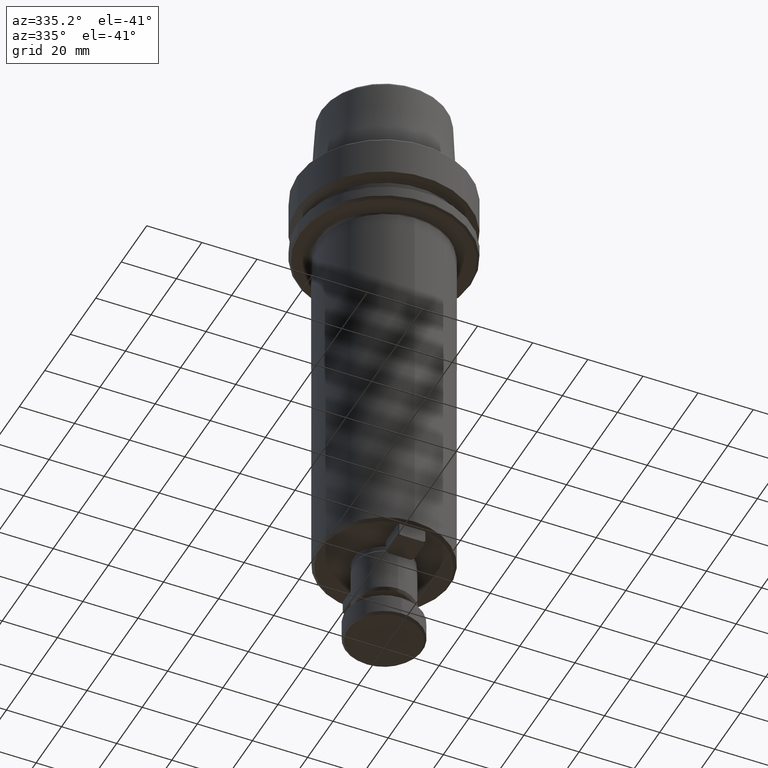
[diagram: clean part render]
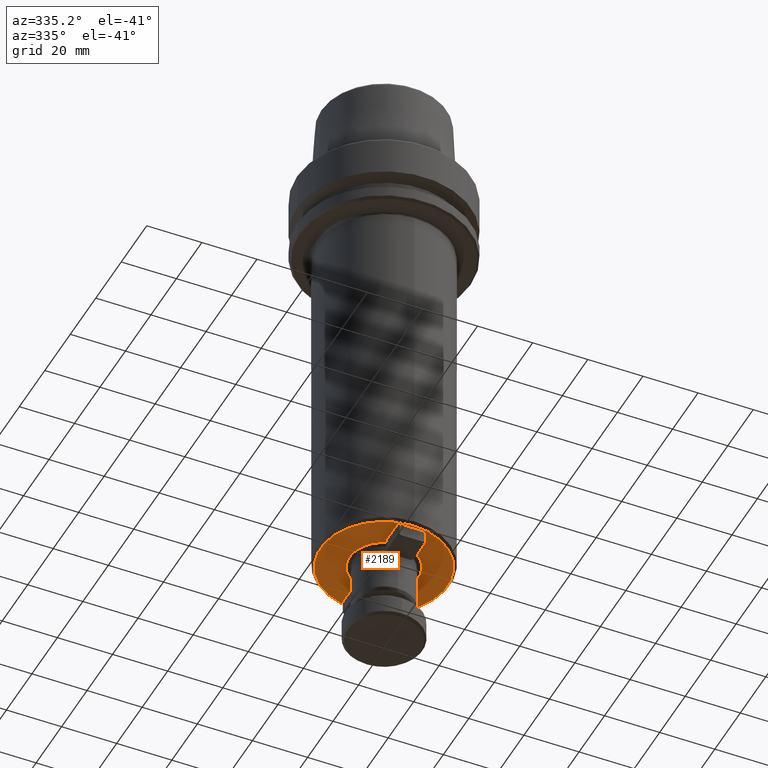
[diagram: same view with one face highlighted and labeled with its STEP entity id]
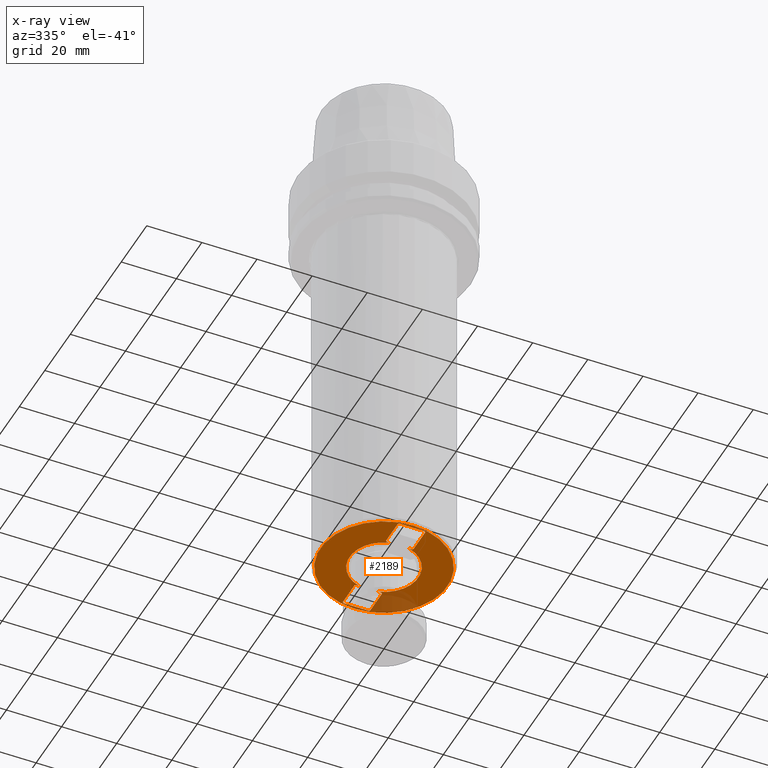
[diagram: x-ray of the same camera — body ghosted, the highlighted face saturated]
A machine part, auxiliary view. The second image highlights one B-rep face of the part: STEP entity #2189.
The next image is the same camera in x-ray: the body ghosted, the highlighted face saturated — about 13% of this face is hidden behind the body in this view.
In plain terms, the highlighted planar face has unit normal (-0, 0, -1).
Its self-contained STEP definition (entity closure, byte-faithful):
#1 = EDGE_CURVE ( 'NONE', #102, #883, #2614, .T. ) ;
#5 = VECTOR ( 'NONE', #1206, 1000.000000000000000 ) ;
#10 = ORIENTED_EDGE ( 'NONE', *, *, #1370, .F. ) ;
#20 = EDGE_CURVE ( 'NONE', #1324, #800, #2583, .T. ) ;
#38 = VERTEX_POINT ( 'NONE', #2049 ) ;
#71 = CARTESIAN_POINT ( 'NONE',  ( -4.599999999999997900, -22.00000000000000700, -160.0000000000000000 ) ) ;
#100 = ORIENTED_EDGE ( 'NONE', *, *, #2509, .F. ) ;
#102 = VERTEX_POINT ( 'NONE', #2675 ) ;
#119 = CARTESIAN_POINT ( 'NONE',  ( 0.0000000000000000000, 6.435398866107657600E-015, -160.0000000000000000 ) ) ;
#127 = CARTESIAN_POINT ( 'NONE',  ( 4.599999999999998800, -22.00000000000000700, -160.0000000000000000 ) ) ;
#134 = DIRECTION ( 'NONE',  ( -1.000000000000000000, 0.0000000000000000000, 0.0000000000000000000 ) ) ;
#143 = VECTOR ( 'NONE', #2686, 1000.000000000000000 ) ;
#147 = DIRECTION ( 'NONE',  ( 0.0000000000000000000, 1.000000000000000000, 0.0000000000000000000 ) ) ;
#170 = CARTESIAN_POINT ( 'NONE',  ( 5.000000000000000900, 12.40000000000000600, -160.0000000000000000 ) ) ;
#182 = DIRECTION ( 'NONE',  ( 1.000000000000000000, -0.0000000000000000000, -0.0000000000000000000 ) ) ;
#185 = DIRECTION ( 'NONE',  ( -1.000000000000000000, 0.0000000000000000000, 0.0000000000000000000 ) ) ;
#224 = LINE ( 'NONE', #579, #2491 ) ;
#240 = FACE_OUTER_BOUND ( 'NONE', #2175, .T. ) ;
#264 = ORIENTED_EDGE ( 'NONE', *, *, #1689, .F. ) ;
#277 = EDGE_CURVE ( 'NONE', #1209, #1511, #224, .T. ) ;
#281 = CARTESIAN_POINT ( 'NONE',  ( 5.000000000000000900, -12.40000000000000600, -160.0000000000000000 ) ) ;
#295 = ORIENTED_EDGE ( 'NONE', *, *, #1141, .T. ) ;
#321 = DIRECTION ( 'NONE',  ( 0.0000000000000000000, 1.000000000000000000, 0.0000000000000000000 ) ) ;
#352 = EDGE_CURVE ( 'NONE', #1511, #2155, #1556, .T. ) ;
#379 = ORIENTED_EDGE ( 'NONE', *, *, #1300, .F. ) ;
#441 = LINE ( 'NONE', #281, #1543 ) ;
#452 = VECTOR ( 'NONE', #1777, 1000.000000000000100 ) ;
#453 = LINE ( 'NONE', #2746, #1557 ) ;
#470 = EDGE_CURVE ( 'NONE', #2533, #528, #2405, .T. ) ;
#471 = CIRCLE ( 'NONE', #2412, 23.00000000000000400 ) ;
#490 = EDGE_LOOP ( 'NONE', ( #668, #836, #1254, #1978, #917, #2731, #379, #2159, #2217, #1862, #10, #637, #900, #100, #717, #2737, #264, #871, #2145, #2611 ) ) ;
#493 = CARTESIAN_POINT ( 'NONE',  ( -5.000000000000000000, 21.60000000000000500, -160.0000000000000000 ) ) ;
#497 = LINE ( 'NONE', #1963, #2757 ) ;
#499 = DIRECTION ( 'NONE',  ( -0.7071067811865474600, -0.7071067811865474600, 0.0000000000000000000 ) ) ;
#513 = LINE ( 'NONE', #2088, #584 ) ;
#527 = CARTESIAN_POINT ( 'NONE',  ( 5.000000000000000900, -12.40000000000000600, -160.0000000000000000 ) ) ;
#528 = VERTEX_POINT ( 'NONE', #1575 ) ;
#529 = CARTESIAN_POINT ( 'NONE',  ( 4.599999999999997900, 22.00000000000000700, -160.0000000000000000 ) ) ;
#531 = DIRECTION ( 'NONE',  ( -1.885568995626964500E-016, 1.000000000000000000, 0.0000000000000000000 ) ) ;
#546 = DIRECTION ( 'NONE',  ( -0.0000000000000000000, 4.802536467244522200E-017, -1.000000000000000000 ) ) ;
#579 = CARTESIAN_POINT ( 'NONE',  ( 4.599999999999997900, 22.00000000000000700, -160.0000000000000000 ) ) ;
#584 = VECTOR ( 'NONE', #2301, 1000.000000000000000 ) ;
#590 = DIRECTION ( 'NONE',  ( 0.7071067811865474600, 0.7071067811865474600, -0.0000000000000000000 ) ) ;
#622 = EDGE_CURVE ( 'NONE', #2380, #763, #1435, .T. ) ;
#629 = VECTOR ( 'NONE', #531, 1000.000000000000000 ) ;
#637 = ORIENTED_EDGE ( 'NONE', *, *, #622, .F. ) ;
#649 = DIRECTION ( 'NONE',  ( 1.000000000000000000, 0.0000000000000000000, 0.0000000000000000000 ) ) ;
#667 = CARTESIAN_POINT ( 'NONE',  ( -4.600000000000000500, -12.00000000000000700, -160.0000000000000000 ) ) ;
#668 = ORIENTED_EDGE ( 'NONE', *, *, #2215, .F. ) ;
#717 = ORIENTED_EDGE ( 'NONE', *, *, #352, .F. ) ;
#740 = CARTESIAN_POINT ( 'NONE',  ( 4.999999999999999100, 21.60000000000000500, -160.0000000000000000 ) ) ;
#746 = VERTEX_POINT ( 'NONE', #1528 ) ;
#763 = VERTEX_POINT ( 'NONE', #2591 ) ;
#800 = VERTEX_POINT ( 'NONE', #919 ) ;
#808 = EDGE_CURVE ( 'NONE', #977, #2380, #1304, .T. ) ;
#825 = VECTOR ( 'NONE', #185, 1000.000000000000000 ) ;
#836 = ORIENTED_EDGE ( 'NONE', *, *, #2801, .F. ) ;
#867 = VECTOR ( 'NONE', #1776, 1000.000000000000000 ) ;
#871 = ORIENTED_EDGE ( 'NONE', *, *, #1, .F. ) ;
#883 = VERTEX_POINT ( 'NONE', #493 ) ;
#900 = ORIENTED_EDGE ( 'NONE', *, *, #808, .F. ) ;
#917 = ORIENTED_EDGE ( 'NONE', *, *, #1408, .F. ) ;
#919 = CARTESIAN_POINT ( 'NONE',  ( -4.599999999999997900, -22.00000000000000700, -160.0000000000000000 ) ) ;
#930 = VECTOR ( 'NONE', #1323, 1000.000000000000000 ) ;
#936 = CARTESIAN_POINT ( 'NONE',  ( 5.000000000000000900, 12.40000000000000600, -160.0000000000000000 ) ) ;
#948 = CARTESIAN_POINT ( 'NONE',  ( -4.599999999999997900, -22.00000000000000700, -160.0000000000000000 ) ) ;
#959 = DIRECTION ( 'NONE',  ( -0.0000000000000000000, 4.802536467244522200E-017, -1.000000000000000000 ) ) ;
#973 = CARTESIAN_POINT ( 'NONE',  ( -5.000000000000000000, 21.60000000000000500, -160.0000000000000000 ) ) ;
#976 = CARTESIAN_POINT ( 'NONE',  ( 0.0000000000000000000, 6.435398866107657600E-015, -160.0000000000000000 ) ) ;
#977 = VERTEX_POINT ( 'NONE', #170 ) ;
#1013 = ORIENTED_EDGE ( 'NONE', *, *, #2501, .T. ) ;
#1033 = CARTESIAN_POINT ( 'NONE',  ( -4.600000000000000500, 12.00000000000000700, -160.0000000000000000 ) ) ;
#1084 = VECTOR ( 'NONE', #590, 1000.000000000000100 ) ;
#1100 = CARTESIAN_POINT ( 'NONE',  ( -4.599999999999998800, 22.00000000000000700, -160.0000000000000000 ) ) ;
#1107 = CARTESIAN_POINT ( 'NONE',  ( 5.000000000000000000, -21.60000000000000500, -160.0000000000000000 ) ) ;
#1141 = EDGE_CURVE ( 'NONE', #2547, #38, #471, .T. ) ;
#1177 = CARTESIAN_POINT ( 'NONE',  ( -3.427885645700500000, -12.00000000000000700, -160.0000000000000000 ) ) ;
#1205 = PLANE ( 'NONE',  #1411 ) ;
#1206 = DIRECTION ( 'NONE',  ( -1.000000000000000000, 0.0000000000000000000, 0.0000000000000000000 ) ) ;
#1209 = VERTEX_POINT ( 'NONE', #1100 ) ;
#1210 = DIRECTION ( 'NONE',  ( 0.0000000000000000000, 1.000000000000000000, 0.0000000000000000000 ) ) ;
#1233 = CARTESIAN_POINT ( 'NONE',  ( 5.000000000000000000, -21.60000000000000500, -160.0000000000000000 ) ) ;
#1254 = ORIENTED_EDGE ( 'NONE', *, *, #470, .F. ) ;
#1293 = LINE ( 'NONE', #2066, #629 ) ;
#1300 = EDGE_CURVE ( 'NONE', #2252, #1324, #2392, .T. ) ;
#1304 = LINE ( 'NONE', #936, #143 ) ;
#1323 = DIRECTION ( 'NONE',  ( -9.427844978134822700E-017, -1.000000000000000000, 0.0000000000000000000 ) ) ;
#1324 = VERTEX_POINT ( 'NONE', #127 ) ;
#1352 = DIRECTION ( 'NONE',  ( 0.7071067811865483500, 0.7071067811865468000, 0.0000000000000000000 ) ) ;
#1370 = EDGE_CURVE ( 'NONE', #763, #2276, #2251, .T. ) ;
#1385 = CARTESIAN_POINT ( 'NONE',  ( 4.600000000000000500, 12.00000000000000700, -160.0000000000000000 ) ) ;
#1404 = EDGE_CURVE ( 'NONE', #2408, #2160, #441, .T. ) ;
#1408 = EDGE_CURVE ( 'NONE', #800, #1799, #2115, .T. ) ;
#1411 = AXIS2_PLACEMENT_3D ( 'NONE', #1425, #546, #2086 ) ;
#1425 = CARTESIAN_POINT ( 'NONE',  ( 0.0000000000000000000, 23.00000000000001100, -160.0000000000000000 ) ) ;
#1435 = LINE ( 'NONE', #2154, #825 ) ;
#1448 = DIRECTION ( 'NONE',  ( -0.0000000000000000000, 4.802536467244522200E-017, -1.000000000000000000 ) ) ;
#1511 = VERTEX_POINT ( 'NONE', #529 ) ;
#1528 = CARTESIAN_POINT ( 'NONE',  ( -3.427885645700550200, 12.00000000000000400, -160.0000000000000000 ) ) ;
#1543 = VECTOR ( 'NONE', #1579, 1000.000000000000000 ) ;
#1556 = LINE ( 'NONE', #1785, #452 ) ;
#1557 = VECTOR ( 'NONE', #134, 1000.000000000000000 ) ;
#1559 = AXIS2_PLACEMENT_3D ( 'NONE', #2750, #1448, #147 ) ;
#1575 = CARTESIAN_POINT ( 'NONE',  ( -4.600000000000000500, -12.00000000000000700, -160.0000000000000000 ) ) ;
#1579 = DIRECTION ( 'NONE',  ( 0.7071067811865483500, -0.7071067811865468000, 0.0000000000000000000 ) ) ;
#1596 = LINE ( 'NONE', #1900, #1084 ) ;
#1597 = LINE ( 'NONE', #1107, #930 ) ;
#1620 = VECTOR ( 'NONE', #1649, 1000.000000000000000 ) ;
#1639 = DIRECTION ( 'NONE',  ( -0.0000000000000000000, 4.802536467244522200E-017, -1.000000000000000000 ) ) ;
#1649 = DIRECTION ( 'NONE',  ( 1.885568995626964500E-016, -1.000000000000000000, 0.0000000000000000000 ) ) ;
#1666 = CARTESIAN_POINT ( 'NONE',  ( 4.599999999999998800, -22.00000000000000700, -160.0000000000000000 ) ) ;
#1689 = EDGE_CURVE ( 'NONE', #883, #1209, #1596, .T. ) ;
#1699 = VERTEX_POINT ( 'NONE', #1033 ) ;
#1776 = DIRECTION ( 'NONE',  ( 1.000000000000000000, 0.0000000000000000000, 0.0000000000000000000 ) ) ;
#1777 = DIRECTION ( 'NONE',  ( 0.7071067811865474600, -0.7071067811865474600, 0.0000000000000000000 ) ) ;
#1785 = CARTESIAN_POINT ( 'NONE',  ( 4.599999999999997900, 22.00000000000000700, -160.0000000000000000 ) ) ;
#1792 = DIRECTION ( 'NONE',  ( -0.7071067811865474600, 0.7071067811865474600, 0.0000000000000000000 ) ) ;
#1797 = VECTOR ( 'NONE', #499, 1000.000000000000100 ) ;
#1799 = VERTEX_POINT ( 'NONE', #2427 ) ;
#1823 = DIRECTION ( 'NONE',  ( 0.0000000000000000000, 1.000000000000000000, 0.0000000000000000000 ) ) ;
#1862 = ORIENTED_EDGE ( 'NONE', *, *, #2741, .F. ) ;
#1863 = CARTESIAN_POINT ( 'NONE',  ( 2.877919977996280300E-015, 23.00000000000001100, -160.0000000000000000 ) ) ;
#1900 = CARTESIAN_POINT ( 'NONE',  ( -4.599999999999998800, 22.00000000000000700, -160.0000000000000000 ) ) ;
#1959 = VERTEX_POINT ( 'NONE', #1177 ) ;
#1963 = CARTESIAN_POINT ( 'NONE',  ( -4.600000000000000500, -12.00000000000000700, -160.0000000000000000 ) ) ;
#1965 = FACE_BOUND ( 'NONE', #490, .T. ) ;
#1978 = ORIENTED_EDGE ( 'NONE', *, *, #2000, .F. ) ;
#1991 = VECTOR ( 'NONE', #2662, 1000.000000000000000 ) ;
#2000 = EDGE_CURVE ( 'NONE', #1799, #2533, #1293, .T. ) ;
#2010 = CARTESIAN_POINT ( 'NONE',  ( -5.000000000000000900, -12.40000000000000600, -160.0000000000000000 ) ) ;
#2039 = LINE ( 'NONE', #667, #867 ) ;
#2049 = CARTESIAN_POINT ( 'NONE',  ( 0.0000000000000000000, -22.99999999999999600, -160.0000000000000000 ) ) ;
#2061 = CARTESIAN_POINT ( 'NONE',  ( 4.600000000000000500, -12.00000000000000700, -160.0000000000000000 ) ) ;
#2066 = CARTESIAN_POINT ( 'NONE',  ( -4.999999999999999100, -21.60000000000000500, -160.0000000000000000 ) ) ;
#2086 = DIRECTION ( 'NONE',  ( 0.0000000000000000000, 1.000000000000000000, 4.802536467244522200E-017 ) ) ;
#2088 = CARTESIAN_POINT ( 'NONE',  ( -5.000000000000000900, 12.40000000000000600, -160.0000000000000000 ) ) ;
#2096 = CARTESIAN_POINT ( 'NONE',  ( -5.000000000000000900, -12.40000000000000600, -160.0000000000000000 ) ) ;
#2115 = LINE ( 'NONE', #71, #2631 ) ;
#2134 = VECTOR ( 'NONE', #1352, 1000.000000000000000 ) ;
#2145 = ORIENTED_EDGE ( 'NONE', *, *, #2513, .F. ) ;
#2154 = CARTESIAN_POINT ( 'NONE',  ( 4.600000000000000500, 12.00000000000000700, -160.0000000000000000 ) ) ;
#2155 = VERTEX_POINT ( 'NONE', #740 ) ;
#2159 = ORIENTED_EDGE ( 'NONE', *, *, #2782, .F. ) ;
#2160 = VERTEX_POINT ( 'NONE', #527 ) ;
#2175 = EDGE_LOOP ( 'NONE', ( #1013, #295 ) ) ;
#2189 = ADVANCED_FACE ( 'NONE', ( #240, #1965 ), #1205, .T. ) ;
#2203 = LINE ( 'NONE', #2295, #1620 ) ;
#2215 = EDGE_CURVE ( 'NONE', #1959, #746, #2415, .T. ) ;
#2217 = ORIENTED_EDGE ( 'NONE', *, *, #1404, .F. ) ;
#2251 = CIRCLE ( 'NONE', #2499, 12.47999999999999500 ) ;
#2252 = VERTEX_POINT ( 'NONE', #1233 ) ;
#2266 = CIRCLE ( 'NONE', #2530, 23.00000000000000400 ) ;
#2276 = VERTEX_POINT ( 'NONE', #2549 ) ;
#2293 = CARTESIAN_POINT ( 'NONE',  ( 0.0000000000000000000, 6.435398866107657600E-015, -160.0000000000000000 ) ) ;
#2295 = CARTESIAN_POINT ( 'NONE',  ( 4.999999999999999100, 21.60000000000000500, -160.0000000000000000 ) ) ;
#2301 = DIRECTION ( 'NONE',  ( -0.7071067811865483500, 0.7071067811865468000, -0.0000000000000000000 ) ) ;
#2380 = VERTEX_POINT ( 'NONE', #1385 ) ;
#2392 = LINE ( 'NONE', #1666, #1797 ) ;
#2405 = LINE ( 'NONE', #2010, #2134 ) ;
#2408 = VERTEX_POINT ( 'NONE', #2061 ) ;
#2412 = AXIS2_PLACEMENT_3D ( 'NONE', #2293, #959, #321 ) ;
#2415 = CIRCLE ( 'NONE', #1559, 12.47999999999999500 ) ;
#2427 = CARTESIAN_POINT ( 'NONE',  ( -4.999999999999999100, -21.60000000000000500, -160.0000000000000000 ) ) ;
#2491 = VECTOR ( 'NONE', #182, 1000.000000000000000 ) ;
#2499 = AXIS2_PLACEMENT_3D ( 'NONE', #119, #1639, #1823 ) ;
#2501 = EDGE_CURVE ( 'NONE', #38, #2547, #2266, .T. ) ;
#2509 = EDGE_CURVE ( 'NONE', #2155, #977, #2203, .T. ) ;
#2513 = EDGE_CURVE ( 'NONE', #1699, #102, #513, .T. ) ;
#2514 = DIRECTION ( 'NONE',  ( -0.0000000000000000000, 4.802536467244522200E-017, -1.000000000000000000 ) ) ;
#2522 = EDGE_CURVE ( 'NONE', #746, #1699, #453, .T. ) ;
#2530 = AXIS2_PLACEMENT_3D ( 'NONE', #976, #2514, #1210 ) ;
#2533 = VERTEX_POINT ( 'NONE', #2096 ) ;
#2547 = VERTEX_POINT ( 'NONE', #1863 ) ;
#2549 = CARTESIAN_POINT ( 'NONE',  ( 3.427885645700505800, -12.00000000000000400, -160.0000000000000000 ) ) ;
#2583 = LINE ( 'NONE', #948, #5 ) ;
#2591 = CARTESIAN_POINT ( 'NONE',  ( 3.427885645700550200, 12.00000000000000400, -160.0000000000000000 ) ) ;
#2611 = ORIENTED_EDGE ( 'NONE', *, *, #2522, .F. ) ;
#2614 = LINE ( 'NONE', #973, #1991 ) ;
#2631 = VECTOR ( 'NONE', #1792, 1000.000000000000100 ) ;
#2662 = DIRECTION ( 'NONE',  ( 9.427844978134822700E-017, 1.000000000000000000, -0.0000000000000000000 ) ) ;
#2675 = CARTESIAN_POINT ( 'NONE',  ( -5.000000000000000900, 12.40000000000000600, -160.0000000000000000 ) ) ;
#2686 = DIRECTION ( 'NONE',  ( -0.7071067811865483500, -0.7071067811865468000, 0.0000000000000000000 ) ) ;
#2731 = ORIENTED_EDGE ( 'NONE', *, *, #20, .F. ) ;
#2737 = ORIENTED_EDGE ( 'NONE', *, *, #277, .F. ) ;
#2741 = EDGE_CURVE ( 'NONE', #2276, #2408, #497, .T. ) ;
#2746 = CARTESIAN_POINT ( 'NONE',  ( 4.600000000000000500, 12.00000000000000700, -160.0000000000000000 ) ) ;
#2750 = CARTESIAN_POINT ( 'NONE',  ( 0.0000000000000000000, 6.435398866107657600E-015, -160.0000000000000000 ) ) ;
#2757 = VECTOR ( 'NONE', #649, 1000.000000000000000 ) ;
#2782 = EDGE_CURVE ( 'NONE', #2160, #2252, #1597, .T. ) ;
#2801 = EDGE_CURVE ( 'NONE', #528, #1959, #2039, .T. ) ;